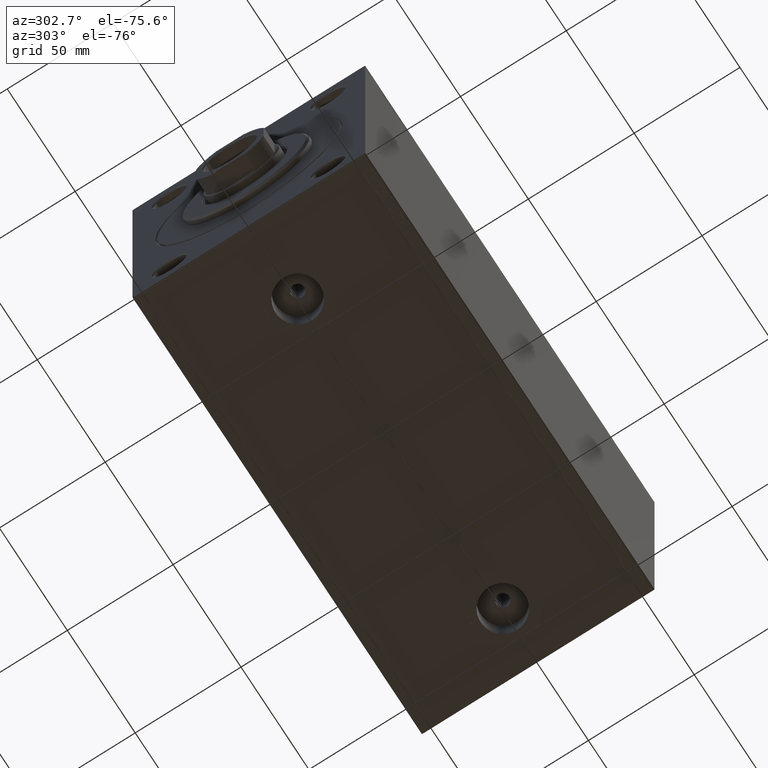
[diagram: clean part render]
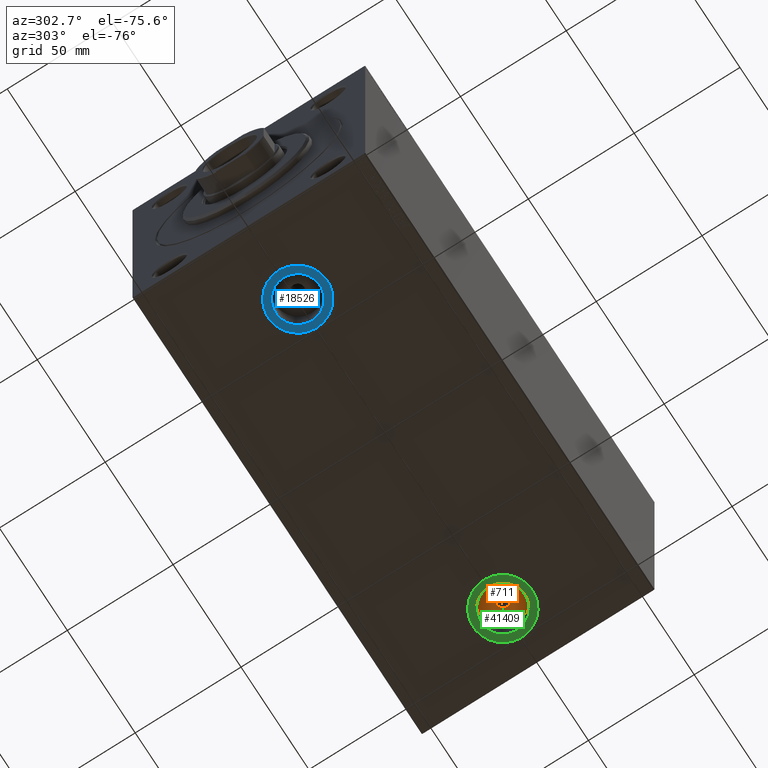
[diagram: same view with three faces highlighted in distinct colors, each labeled with its STEP entity id]
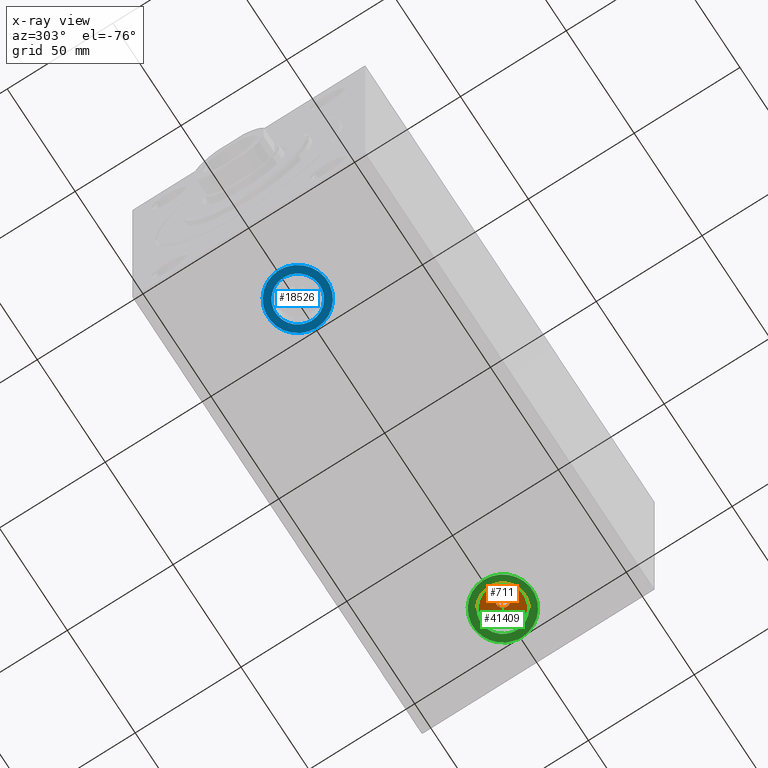
[diagram: x-ray of the same camera — body ghosted, the three highlighted faces saturated]
A machine part, auxiliary view with three faces highlighted in distinct colors.
The next image is the same camera in x-ray (body ghosted, the three faces saturated) — at least one of them is partly hidden behind the body in this view.
Their STEP definitions:

[orange] entity #711 — the highlighted planar face has unit normal (0, 0, -1).
#711 = ADVANCED_FACE ( 'NONE', ( #24165, #5669 ), #5899, .T. ) ;
#1108 = DIRECTION ( 'NONE',  ( -1.000000000000000000, 0.000000000000000000, 0.000000000000000000 ) ) ;
#2887 = DIRECTION ( 'NONE',  ( -1.000000000000000000, 0.000000000000000000, 0.000000000000000000 ) ) ;
#4512 = VERTEX_POINT ( 'NONE', #29711 ) ;
#4916 = CARTESIAN_POINT ( 'NONE',  ( 197.4799999999999898, -9.551641657521585633E-15, -57.00000000000000000 ) ) ;
#5615 = CIRCLE ( 'NONE', #25555, 3.000000000000002665 ) ;
#5669 = FACE_OUTER_BOUND ( 'NONE', #41845, .T. ) ;
#5899 = PLANE ( 'NONE',  #29788 ) ;
#9067 = AXIS2_PLACEMENT_3D ( 'NONE', #18222, #14984, #1108 ) ;
#9190 = CARTESIAN_POINT ( 'NONE',  ( 187.0000000000000000, -1.083507150302800954E-14, -57.00000000000000000 ) ) ;
#9221 = AXIS2_PLACEMENT_3D ( 'NONE', #9190, #37368, #40836 ) ;
#10172 = EDGE_CURVE ( 'NONE', #25255, #19354, #36367, .T. ) ;
#12865 = ORIENTED_EDGE ( 'NONE', *, *, #14142, .F. ) ;
#13033 = CARTESIAN_POINT ( 'NONE',  ( 176.5200000000000102, -1.083507150302800954E-14, -57.00000000000000000 ) ) ;
#13641 = CIRCLE ( 'NONE', #9221, 3.000000000000002665 ) ;
#14142 = EDGE_CURVE ( 'NONE', #4512, #34596, #13641, .T. ) ;
#14984 = DIRECTION ( 'NONE',  ( 0.000000000000000000, 0.000000000000000000, -1.000000000000000000 ) ) ;
#16998 = DIRECTION ( 'NONE',  ( 0.000000000000000000, 0.000000000000000000, -1.000000000000000000 ) ) ;
#17432 = EDGE_CURVE ( 'NONE', #34596, #4512, #5615, .T. ) ;
#18222 = CARTESIAN_POINT ( 'NONE',  ( 187.0000000000000000, -1.083507150302800954E-14, -57.00000000000000000 ) ) ;
#19023 = ORIENTED_EDGE ( 'NONE', *, *, #17432, .F. ) ;
#19354 = VERTEX_POINT ( 'NONE', #4916 ) ;
#20926 = CARTESIAN_POINT ( 'NONE',  ( 187.0000000000000000, -1.083507150302800954E-14, -57.00000000000000000 ) ) ;
#24165 = FACE_BOUND ( 'NONE', #28443, .T. ) ;
#25255 = VERTEX_POINT ( 'NONE', #13033 ) ;
#25555 = AXIS2_PLACEMENT_3D ( 'NONE', #20926, #38007, #2887 ) ;
#25628 = EDGE_CURVE ( 'NONE', #19354, #25255, #44798, .T. ) ;
#25950 = ORIENTED_EDGE ( 'NONE', *, *, #10172, .T. ) ;
#28443 = EDGE_LOOP ( 'NONE', ( #19023, #12865 ) ) ;
#28522 = ORIENTED_EDGE ( 'NONE', *, *, #25628, .T. ) ;
#29415 = DIRECTION ( 'NONE',  ( 0.000000000000000000, 0.000000000000000000, -1.000000000000000000 ) ) ;
#29648 = DIRECTION ( 'NONE',  ( -1.000000000000000000, 0.000000000000000000, 0.000000000000000000 ) ) ;
#29711 = CARTESIAN_POINT ( 'NONE',  ( 190.0000000000000000, -1.046767746328380568E-14, -57.00000000000000000 ) ) ;
#29788 = AXIS2_PLACEMENT_3D ( 'NONE', #38247, #16998, #37787 ) ;
#34596 = VERTEX_POINT ( 'NONE', #38660 ) ;
#36367 = CIRCLE ( 'NONE', #9067, 10.47999999999998977 ) ;
#37368 = DIRECTION ( 'NONE',  ( 0.000000000000000000, 0.000000000000000000, -1.000000000000000000 ) ) ;
#37787 = DIRECTION ( 'NONE',  ( -1.000000000000000000, 0.000000000000000000, -0.000000000000000000 ) ) ;
#38007 = DIRECTION ( 'NONE',  ( 0.000000000000000000, 0.000000000000000000, -1.000000000000000000 ) ) ;
#38177 = AXIS2_PLACEMENT_3D ( 'NONE', #40935, #29415, #29648 ) ;
#38247 = CARTESIAN_POINT ( 'NONE',  ( 0.000000000000000000, 0.000000000000000000, -57.00000000000000000 ) ) ;
#38660 = CARTESIAN_POINT ( 'NONE',  ( 184.0000000000000000, -1.083507150302800954E-14, -57.00000000000000000 ) ) ;
#40836 = DIRECTION ( 'NONE',  ( -1.000000000000000000, 0.000000000000000000, 0.000000000000000000 ) ) ;
#40935 = CARTESIAN_POINT ( 'NONE',  ( 187.0000000000000000, -1.083507150302800954E-14, -57.00000000000000000 ) ) ;
#41845 = EDGE_LOOP ( 'NONE', ( #25950, #28522 ) ) ;
#44798 = CIRCLE ( 'NONE', #38177, 10.47999999999998977 ) ;

[blue] entity #18526 — the highlighted planar face has unit normal (0, 0, -1).
#1594 = CARTESIAN_POINT ( 'NONE',  ( 36.00000000000000000, 4.206130763976431907E-15, -69.90000000000000568 ) ) ;
#3347 = CIRCLE ( 'NONE', #27710, 10.48000000000000043 ) ;
#5140 = ORIENTED_EDGE ( 'NONE', *, *, #15915, .F. ) ;
#5387 = FACE_BOUND ( 'NONE', #12850, .T. ) ;
#5614 = PLANE ( 'NONE',  #37379 ) ;
#5708 = CIRCLE ( 'NONE', #20481, 13.99999999999999822 ) ;
#7068 = VERTEX_POINT ( 'NONE', #12530 ) ;
#7790 = EDGE_LOOP ( 'NONE', ( #38011, #12994 ) ) ;
#8068 = DIRECTION ( 'NONE',  ( -1.000000000000000000, 0.000000000000000000, 0.000000000000000000 ) ) ;
#8414 = DIRECTION ( 'NONE',  ( 0.000000000000000000, 0.000000000000000000, -1.000000000000000000 ) ) ;
#8992 = DIRECTION ( 'NONE',  ( 0.000000000000000000, 0.000000000000000000, -1.000000000000000000 ) ) ;
#9318 = FACE_OUTER_BOUND ( 'NONE', #7790, .T. ) ;
#12414 = DIRECTION ( 'NONE',  ( 0.000000000000000000, 0.000000000000000000, -1.000000000000000000 ) ) ;
#12530 = CARTESIAN_POINT ( 'NONE',  ( 50.00000000000000000, 5.920636282782727137E-15, -69.90000000000000568 ) ) ;
#12747 = CARTESIAN_POINT ( 'NONE',  ( 46.47999999999999687, 5.489560609482857396E-15, -69.90000000000000568 ) ) ;
#12850 = EDGE_LOOP ( 'NONE', ( #42745, #5140 ) ) ;
#12994 = ORIENTED_EDGE ( 'NONE', *, *, #25020, .T. ) ;
#14402 = CIRCLE ( 'NONE', #34324, 10.48000000000000043 ) ;
#15457 = CARTESIAN_POINT ( 'NONE',  ( 25.51999999999999602, 4.206130763976431907E-15, -69.90000000000000568 ) ) ;
#15492 = EDGE_CURVE ( 'NONE', #16973, #24811, #14402, .T. ) ;
#15915 = EDGE_CURVE ( 'NONE', #24811, #16973, #3347, .T. ) ;
#16973 = VERTEX_POINT ( 'NONE', #15457 ) ;
#18526 = ADVANCED_FACE ( 'NONE', ( #5387, #9318 ), #5614, .T. ) ;
#19428 = DIRECTION ( 'NONE',  ( -1.000000000000000000, 0.000000000000000000, 0.000000000000000000 ) ) ;
#19502 = DIRECTION ( 'NONE',  ( 0.000000000000000000, 0.000000000000000000, -1.000000000000000000 ) ) ;
#20481 = AXIS2_PLACEMENT_3D ( 'NONE', #36901, #12414, #26736 ) ;
#22520 = DIRECTION ( 'NONE',  ( -1.000000000000000000, 0.000000000000000000, 0.000000000000000000 ) ) ;
#22973 = CARTESIAN_POINT ( 'NONE',  ( 0.000000000000000000, 0.000000000000000000, -69.90000000000000568 ) ) ;
#23420 = DIRECTION ( 'NONE',  ( -1.000000000000000000, 0.000000000000000000, -0.000000000000000000 ) ) ;
#24811 = VERTEX_POINT ( 'NONE', #12747 ) ;
#25020 = EDGE_CURVE ( 'NONE', #7068, #40193, #5708, .T. ) ;
#25277 = CARTESIAN_POINT ( 'NONE',  ( 36.00000000000000000, 4.206130763976431907E-15, -69.90000000000000568 ) ) ;
#26736 = DIRECTION ( 'NONE',  ( -1.000000000000000000, 0.000000000000000000, 0.000000000000000000 ) ) ;
#27710 = AXIS2_PLACEMENT_3D ( 'NONE', #30283, #40442, #19428 ) ;
#30283 = CARTESIAN_POINT ( 'NONE',  ( 36.00000000000000000, 4.206130763976431907E-15, -69.90000000000000568 ) ) ;
#31474 = EDGE_CURVE ( 'NONE', #40193, #7068, #39821, .T. ) ;
#34324 = AXIS2_PLACEMENT_3D ( 'NONE', #25277, #8414, #22520 ) ;
#36901 = CARTESIAN_POINT ( 'NONE',  ( 36.00000000000000000, 4.206130763976431907E-15, -69.90000000000000568 ) ) ;
#37379 = AXIS2_PLACEMENT_3D ( 'NONE', #22973, #19502, #23420 ) ;
#38011 = ORIENTED_EDGE ( 'NONE', *, *, #31474, .T. ) ;
#39821 = CIRCLE ( 'NONE', #41298, 13.99999999999999822 ) ;
#40193 = VERTEX_POINT ( 'NONE', #42171 ) ;
#40442 = DIRECTION ( 'NONE',  ( 0.000000000000000000, 0.000000000000000000, -1.000000000000000000 ) ) ;
#41298 = AXIS2_PLACEMENT_3D ( 'NONE', #1594, #8992, #8068 ) ;
#42171 = CARTESIAN_POINT ( 'NONE',  ( 22.00000000000000000, 4.206130763976431907E-15, -69.90000000000000568 ) ) ;
#42745 = ORIENTED_EDGE ( 'NONE', *, *, #15492, .F. ) ;

[green] entity #41409 — the highlighted planar face has unit normal (0, 0, -1).
#4778 = EDGE_CURVE ( 'NONE', #38316, #8313, #15857, .T. ) ;
#6720 = EDGE_CURVE ( 'NONE', #36686, #23618, #24769, .T. ) ;
#6973 = ORIENTED_EDGE ( 'NONE', *, *, #25103, .T. ) ;
#7783 = EDGE_LOOP ( 'NONE', ( #41766, #6973 ) ) ;
#8104 = CARTESIAN_POINT ( 'NONE',  ( 176.5200000000000102, -1.083507150302800954E-14, -69.90000000000000568 ) ) ;
#8313 = VERTEX_POINT ( 'NONE', #28196 ) ;
#9512 = DIRECTION ( 'NONE',  ( 0.000000000000000000, 0.000000000000000000, -1.000000000000000000 ) ) ;
#9604 = DIRECTION ( 'NONE',  ( -1.000000000000000000, 0.000000000000000000, 0.000000000000000000 ) ) ;
#12976 = CARTESIAN_POINT ( 'NONE',  ( 187.0000000000000000, -1.083507150302800954E-14, -69.90000000000000568 ) ) ;
#15857 = CIRCLE ( 'NONE', #23220, 14.00000000000001243 ) ;
#16395 = EDGE_LOOP ( 'NONE', ( #39270, #37750 ) ) ;
#16443 = FACE_BOUND ( 'NONE', #16395, .T. ) ;
#16796 = CARTESIAN_POINT ( 'NONE',  ( 197.4799999999999898, -9.551641657521585633E-15, -69.90000000000000568 ) ) ;
#18166 = CIRCLE ( 'NONE', #31472, 10.47999999999998977 ) ;
#18207 = EDGE_CURVE ( 'NONE', #23618, #36686, #18166, .T. ) ;
#18734 = DIRECTION ( 'NONE',  ( -1.000000000000000000, 0.000000000000000000, 0.000000000000000000 ) ) ;
#19332 = CARTESIAN_POINT ( 'NONE',  ( 187.0000000000000000, -1.083507150302800954E-14, -69.90000000000000568 ) ) ;
#21905 = DIRECTION ( 'NONE',  ( 0.000000000000000000, 0.000000000000000000, -1.000000000000000000 ) ) ;
#23220 = AXIS2_PLACEMENT_3D ( 'NONE', #33071, #24817, #18734 ) ;
#23612 = DIRECTION ( 'NONE',  ( -1.000000000000000000, 0.000000000000000000, -0.000000000000000000 ) ) ;
#23618 = VERTEX_POINT ( 'NONE', #16796 ) ;
#23958 = CARTESIAN_POINT ( 'NONE',  ( 187.0000000000000000, -1.083507150302800954E-14, -69.90000000000000568 ) ) ;
#24769 = CIRCLE ( 'NONE', #35837, 10.47999999999998977 ) ;
#24817 = DIRECTION ( 'NONE',  ( 0.000000000000000000, 0.000000000000000000, -1.000000000000000000 ) ) ;
#25103 = EDGE_CURVE ( 'NONE', #8313, #38316, #30081, .T. ) ;
#25360 = CARTESIAN_POINT ( 'NONE',  ( 187.0000000000000000, -1.083507150302800954E-14, -69.90000000000000568 ) ) ;
#28118 = DIRECTION ( 'NONE',  ( 0.000000000000000000, 0.000000000000000000, -1.000000000000000000 ) ) ;
#28196 = CARTESIAN_POINT ( 'NONE',  ( 201.0000000000000000, -9.120565984221715892E-15, -69.90000000000000568 ) ) ;
#29297 = DIRECTION ( 'NONE',  ( -1.000000000000000000, 0.000000000000000000, 0.000000000000000000 ) ) ;
#30081 = CIRCLE ( 'NONE', #44077, 14.00000000000001243 ) ;
#30547 = FACE_OUTER_BOUND ( 'NONE', #7783, .T. ) ;
#31472 = AXIS2_PLACEMENT_3D ( 'NONE', #19332, #44945, #9604 ) ;
#31808 = DIRECTION ( 'NONE',  ( -1.000000000000000000, 0.000000000000000000, 0.000000000000000000 ) ) ;
#33071 = CARTESIAN_POINT ( 'NONE',  ( 187.0000000000000000, -1.083507150302800954E-14, -69.90000000000000568 ) ) ;
#33096 = AXIS2_PLACEMENT_3D ( 'NONE', #12976, #9512, #23612 ) ;
#35075 = CARTESIAN_POINT ( 'NONE',  ( 173.0000000000000000, -1.083507150302800954E-14, -69.90000000000000568 ) ) ;
#35837 = AXIS2_PLACEMENT_3D ( 'NONE', #25360, #21905, #29297 ) ;
#36686 = VERTEX_POINT ( 'NONE', #8104 ) ;
#37750 = ORIENTED_EDGE ( 'NONE', *, *, #18207, .F. ) ;
#38316 = VERTEX_POINT ( 'NONE', #35075 ) ;
#39270 = ORIENTED_EDGE ( 'NONE', *, *, #6720, .F. ) ;
#41409 = ADVANCED_FACE ( 'NONE', ( #16443, #30547 ), #44626, .T. ) ;
#41766 = ORIENTED_EDGE ( 'NONE', *, *, #4778, .T. ) ;
#44077 = AXIS2_PLACEMENT_3D ( 'NONE', #23958, #28118, #31808 ) ;
#44626 = PLANE ( 'NONE',  #33096 ) ;
#44945 = DIRECTION ( 'NONE',  ( 0.000000000000000000, 0.000000000000000000, -1.000000000000000000 ) ) ;